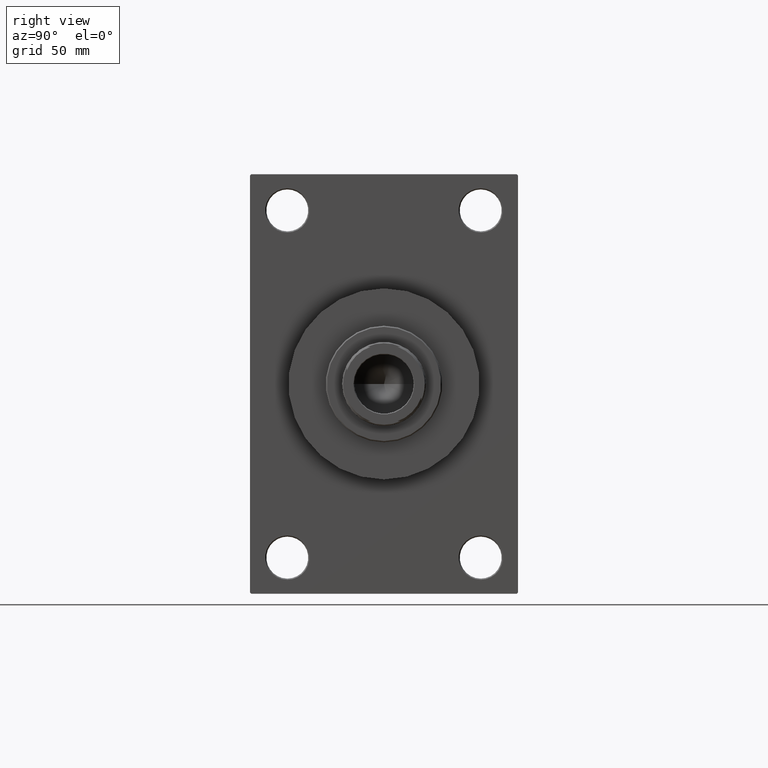
[diagram: clean part render]
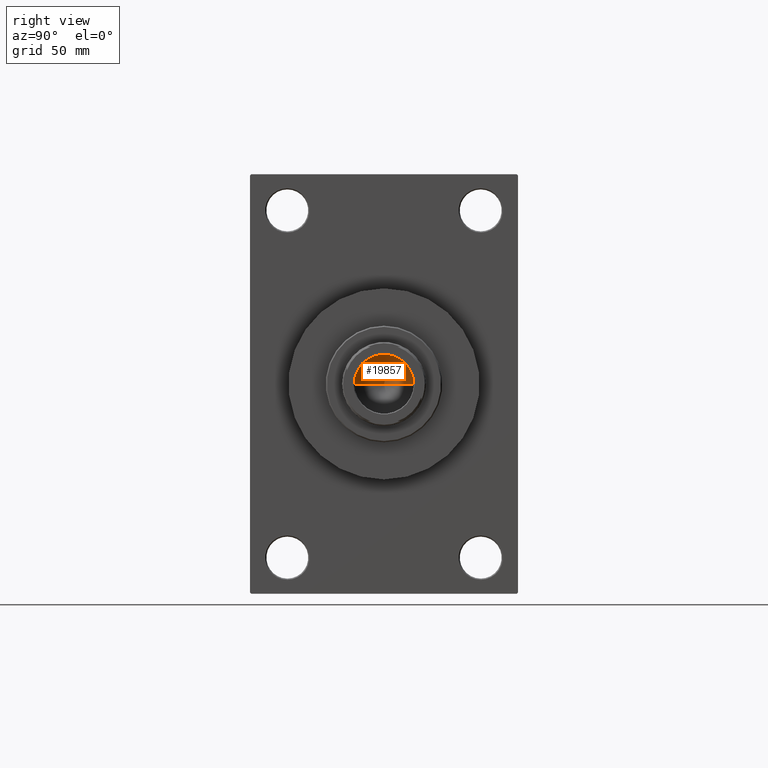
[diagram: same view with one face highlighted and labeled with its STEP entity id]
A machine part, right view. The second image highlights one B-rep face of the part: STEP entity #19857.
In plain terms, the highlighted conical surface has half-angle 59 deg.
Its self-contained STEP definition (entity closure, byte-faithful):
#377 = ORIENTED_EDGE ( 'NONE', *, *, #22735, .T. ) ;
#1892 = LINE ( 'NONE', #16588, #42814 ) ;
#5646 = DIRECTION ( 'NONE',  ( 0.8571673007021117785, 0.000000000000000000, 0.5150380749100550437 ) ) ;
#8805 = VERTEX_POINT ( 'NONE', #37063 ) ;
#10542 = DIRECTION ( 'NONE',  ( -0.000000000000000000, -0.000000000000000000, 1.000000000000000000 ) ) ;
#12185 = DIRECTION ( 'NONE',  ( 1.000000000000000000, 0.000000000000000000, 0.000000000000000000 ) ) ;
#13921 = DIRECTION ( 'NONE',  ( 1.000000000000000000, 0.000000000000000000, 0.000000000000000000 ) ) ;
#15105 = EDGE_CURVE ( 'NONE', #35835, #45540, #1892, .T. ) ;
#15803 = DIRECTION ( 'NONE',  ( -0.000000000000000000, -0.000000000000000000, 1.000000000000000000 ) ) ;
#16588 = CARTESIAN_POINT ( 'NONE',  ( -12.74999999999999112, 1.561424668912874125E-15, 121.0000000000000142 ) ) ;
#19758 = AXIS2_PLACEMENT_3D ( 'NONE', #35636, #10542, #13921 ) ;
#19857 = ADVANCED_FACE ( 'NONE', ( #32008 ), #26663, .F. ) ;
#20500 = EDGE_CURVE ( 'NONE', #35835, #8805, #38687, .T. ) ;
#20596 = ORIENTED_EDGE ( 'NONE', *, *, #20500, .F. ) ;
#22735 = EDGE_CURVE ( 'NONE', #45540, #8805, #36800, .T. ) ;
#22752 = CARTESIAN_POINT ( 'NONE',  ( -12.74999999999999112, 1.561424668912874125E-15, 121.0000000000000142 ) ) ;
#22947 = AXIS2_PLACEMENT_3D ( 'NONE', #38231, #15803, #12185 ) ;
#26663 = CONICAL_SURFACE ( 'NONE', #19758, 12.74999999999999112, 1.029744258676653423 ) ;
#28349 = ORIENTED_EDGE ( 'NONE', *, *, #15105, .T. ) ;
#31297 = DIRECTION ( 'NONE',  ( -0.8571673007021117785, 1.049727191138617956E-16, 0.5150380749100550437 ) ) ;
#31670 = CARTESIAN_POINT ( 'NONE',  ( 12.74999999999999112, 0.000000000000000000, 121.0000000000000142 ) ) ;
#32008 = FACE_OUTER_BOUND ( 'NONE', #32158, .T. ) ;
#32158 = EDGE_LOOP ( 'NONE', ( #20596, #28349, #377 ) ) ;
#33667 = VECTOR ( 'NONE', #5646, 1000.000000000000000 ) ;
#35636 = CARTESIAN_POINT ( 'NONE',  ( 0.000000000000000000, 0.000000000000000000, 121.0000000000000142 ) ) ;
#35835 = VERTEX_POINT ( 'NONE', #40834 ) ;
#36800 = CIRCLE ( 'NONE', #22947, 12.74999999999999112 ) ;
#37063 = CARTESIAN_POINT ( 'NONE',  ( 12.74999999999999112, 0.000000000000000000, 121.0000000000000142 ) ) ;
#38231 = CARTESIAN_POINT ( 'NONE',  ( 0.000000000000000000, 0.000000000000000000, 121.0000000000000142 ) ) ;
#38687 = LINE ( 'NONE', #31670, #33667 ) ;
#40834 = CARTESIAN_POINT ( 'NONE',  ( -1.323906893019387300E-14, 0.000000000000000000, 113.3390271073986071 ) ) ;
#42814 = VECTOR ( 'NONE', #31297, 1000.000000000000000 ) ;
#45540 = VERTEX_POINT ( 'NONE', #22752 ) ;